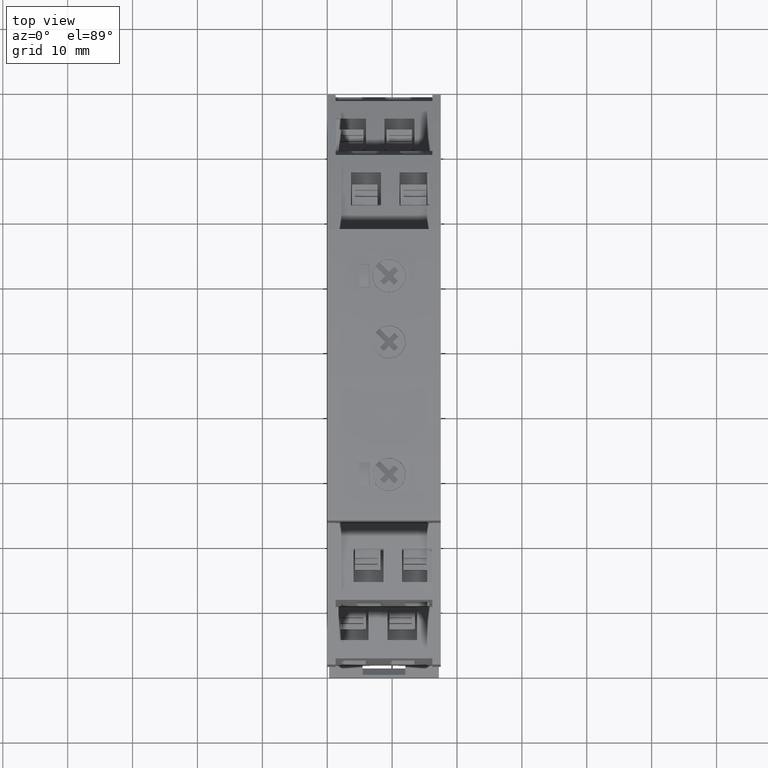
[diagram: clean part render]
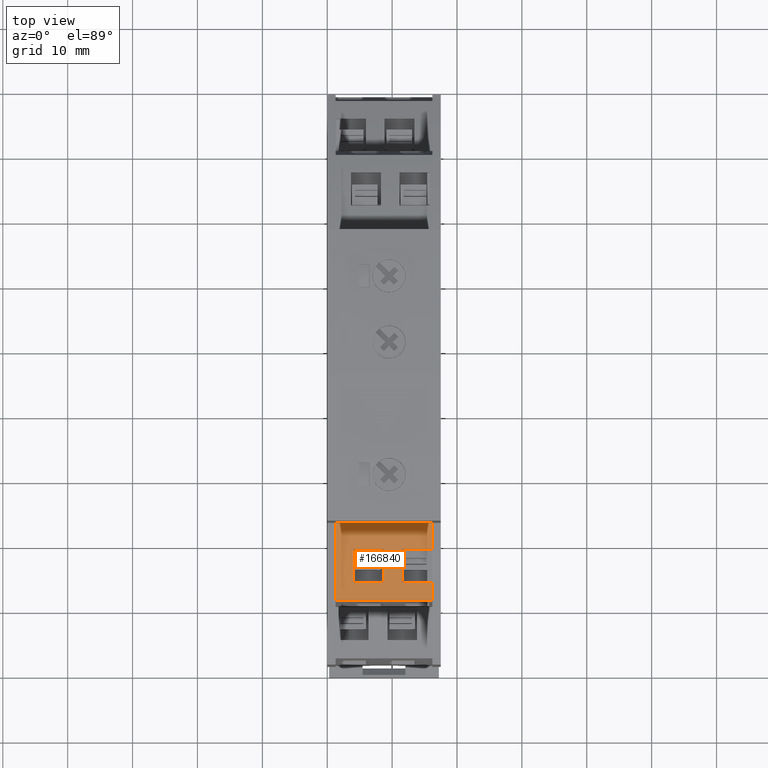
[diagram: same view with one face highlighted and labeled with its STEP entity id]
A machine part, top view. The second image highlights one B-rep face of the part: STEP entity #166840.
In plain terms, the highlighted cylindrical surface (partial cylindrical patch) has radius 138.2 mm, axis along (1, 0, -0).
Its self-contained STEP definition (entity closure, byte-faithful):
#41220=CARTESIAN_POINT('',(-39.937310847489,42.2383940250622,
1.29999999999999));
#41230=VERTEX_POINT('',#41220);
#41260=CARTESIAN_POINT('',(-17.672081182954,-94.1562523067698,
1.29999999999989));
#41270=DIRECTION('',(1.18758417905695E-18,-6.93025158539903E-16,1.));
#41280=DIRECTION('',(0.999998476913288,-0.00174532836590098,
-2.39713883774599E-18));
#41290=AXIS2_PLACEMENT_3D('',#41260,#41270,#41280);
#41300=CIRCLE('',#41290,138.2);
#41310=CARTESIAN_POINT('',(-51.7349236362942,39.7801608302071,
1.29999999999998));
#41320=VERTEX_POINT('',#41310);
#41330=EDGE_CURVE('',#41230,#41320,#41300,.T.);
#50360=CARTESIAN_POINT('',(-51.7349236362942,39.7801608302071,
16.2000000000001));
#50370=VERTEX_POINT('',#50360);
#50400=CARTESIAN_POINT('',(-17.672081182954,-94.1562523067698,16.2));
#50410=DIRECTION('',(1.18758417905695E-18,-6.93025158539903E-16,1.));
#50420=DIRECTION('',(0.999998476913288,-0.00174532836590098,
-2.39713883774599E-18));
#50430=AXIS2_PLACEMENT_3D('',#50400,#50410,#50420);
#50440=CIRCLE('',#50430,138.2);
#50450=CARTESIAN_POINT('',(-39.937310847489,42.2383940250622,
16.2000000000001));
#50460=VERTEX_POINT('',#50450);
#50470=EDGE_CURVE('',#50460,#50370,#50440,.T.);
#51800=CARTESIAN_POINT('',(-39.937310847489,42.2383940250622,
1.29999999999999));
#51810=DIRECTION('',(1.18758417905695E-18,-6.93025158539903E-16,1.));
#51820=VECTOR('',#51810,1.);
#51830=LINE('',#51800,#51820);
#51840=EDGE_CURVE('',#41230,#50460,#51830,.T.);
#165960=CARTESIAN_POINT('',(-17.672081182954,-94.1562523067698,
1.29999999999989));
#165970=DIRECTION('',(1.18758417905695E-18,-6.93025158539903E-16,1.));
#165980=DIRECTION('',(0.999998476913288,-0.00174532836590098,
-2.39713883774599E-18));
#165990=AXIS2_PLACEMENT_3D('',#165960,#165970,#165980);
#166000=CYLINDRICAL_SURFACE('',#165990,138.2);
#166010=CARTESIAN_POINT('',(-49.0099140220283,40.443822852757,
1.29999999999999));
#166020=DIRECTION('',(1.18758417905695E-18,-6.93025158539903E-16,1.));
#166030=VECTOR('',#166020,1.);
#166040=LINE('',#166010,#166030);
#166050=CARTESIAN_POINT('',(-49.0099140220283,40.443822852757,
4.05000000003877));
#166060=VERTEX_POINT('',#166050);
#166070=CARTESIAN_POINT('',(-49.0099140220283,40.443822852757,
8.65000000003893));
#166080=VERTEX_POINT('',#166070);
#166090=EDGE_CURVE('',#166060,#166080,#166040,.T.);
#166100=ORIENTED_EDGE('',*,*,#166090,.F.);
#166110=CARTESIAN_POINT('',(-17.672081182954,-94.1562523067698,
8.65000000003883));
#166120=DIRECTION('',(1.18758417905695E-18,-6.93025158539903E-16,1.));
#166130=DIRECTION('',(0.999998476913288,-0.00174532836590098,
-2.39713883774599E-18));
#166140=AXIS2_PLACEMENT_3D('',#166110,#166120,#166130);
#166150=CIRCLE('',#166140,138.2);
#166160=CARTESIAN_POINT('',(-43.9080095058589,41.5305785392464,
8.65000000003893));
#166170=VERTEX_POINT('',#166160);
#166180=EDGE_CURVE('',#166170,#166080,#166150,.T.);
#166190=ORIENTED_EDGE('',*,*,#166180,.T.);
#166200=CARTESIAN_POINT('',(-43.9080095058589,41.5305785392464,
1.29999999999999));
#166210=DIRECTION('',(1.18758417905695E-18,-6.93025158539903E-16,1.));
#166220=VECTOR('',#166210,1.);
#166230=LINE('',#166200,#166220);
#166240=CARTESIAN_POINT('',(-43.9080095058589,41.5305785392464,
4.05000000003897));
#166250=VERTEX_POINT('',#166240);
#166260=EDGE_CURVE('',#166250,#166170,#166230,.T.);
#166270=ORIENTED_EDGE('',*,*,#166260,.T.);
#166280=CARTESIAN_POINT('',(-17.672081182954,-94.1562523067698,
4.05000000003887));
#166290=DIRECTION('',(1.18758417905695E-18,-6.93025158539903E-16,1.));
#166300=DIRECTION('',(0.999998476913288,-0.00174532836590098,
-2.39713883774599E-18));
#166310=AXIS2_PLACEMENT_3D('',#166280,#166290,#166300);
#166320=CIRCLE('',#166310,138.2);
#166330=EDGE_CURVE('',#166250,#166060,#166320,.T.);
#166340=ORIENTED_EDGE('',*,*,#166330,.F.);
#166350=EDGE_LOOP('',(#166340,#166270,#166190,#166100));
#166360=FACE_BOUND('',#166350,.T.);
#166370=CARTESIAN_POINT('',(-49.0099140220283,40.443822852757,
1.29999999999999));
#166380=DIRECTION('',(1.18758417905695E-18,-6.93025158539903E-16,1.));
#166390=VECTOR('',#166380,1.);
#166400=LINE('',#166370,#166390);
#166410=CARTESIAN_POINT('',(-49.0099140220283,40.443822852757,
11.5500000000388));
#166420=VERTEX_POINT('',#166410);
#166430=CARTESIAN_POINT('',(-49.0099140220283,40.443822852757,
16.1500000000388));
#166440=VERTEX_POINT('',#166430);
#166450=EDGE_CURVE('',#166420,#166440,#166400,.T.);
#166460=ORIENTED_EDGE('',*,*,#166450,.F.);
#166470=CARTESIAN_POINT('',(-17.672081182954,-94.1562523067698,
16.1500000000389));
#166480=DIRECTION('',(1.18758417905695E-18,-6.93025158539903E-16,1.));
#166490=DIRECTION('',(0.999998476913288,-0.00174532836590098,
-2.39713883774599E-18));
#166500=AXIS2_PLACEMENT_3D('',#166470,#166480,#166490);
#166510=CIRCLE('',#166500,138.2);
#166520=CARTESIAN_POINT('',(-43.9080095058589,41.5305785392464,
16.150000000039));
#166530=VERTEX_POINT('',#166520);
#166540=EDGE_CURVE('',#166530,#166440,#166510,.T.);
#166550=ORIENTED_EDGE('',*,*,#166540,.T.);
#166560=CARTESIAN_POINT('',(-43.9080095058589,41.5305785392464,
1.29999999999999));
#166570=DIRECTION('',(1.18758417905695E-18,-6.93025158539903E-16,1.));
#166580=VECTOR('',#166570,1.);
#166590=LINE('',#166560,#166580);
#166600=CARTESIAN_POINT('',(-43.9080095058589,41.5305785392464,
11.5500000000389));
#166610=VERTEX_POINT('',#166600);
#166620=EDGE_CURVE('',#166610,#166530,#166590,.T.);
#166630=ORIENTED_EDGE('',*,*,#166620,.T.);
#166640=CARTESIAN_POINT('',(-17.672081182954,-94.1562523067698,
11.5500000000388));
#166650=DIRECTION('',(1.18758417905695E-18,-6.93025158539903E-16,1.));
#166660=DIRECTION('',(0.999998476913288,-0.00174532836590098,
-2.39713883774599E-18));
#166670=AXIS2_PLACEMENT_3D('',#166640,#166650,#166660);
#166680=CIRCLE('',#166670,138.2);
#166690=EDGE_CURVE('',#166610,#166420,#166680,.T.);
#166700=ORIENTED_EDGE('',*,*,#166690,.F.);
#166710=EDGE_LOOP('',(#166700,#166630,#166550,#166460));
#166720=FACE_BOUND('',#166710,.T.);
#166730=ORIENTED_EDGE('',*,*,#51840,.F.);
#166740=ORIENTED_EDGE('',*,*,#50470,.F.);
#166750=CARTESIAN_POINT('',(-51.7349236362942,39.7801608302071,
1.29999999999999));
#166760=DIRECTION('',(1.18758417905695E-18,-6.93025158539903E-16,1.));
#166770=VECTOR('',#166760,1.);
#166780=LINE('',#166750,#166770);
#166790=EDGE_CURVE('',#41320,#50370,#166780,.T.);
#166800=ORIENTED_EDGE('',*,*,#166790,.T.);
#166810=ORIENTED_EDGE('',*,*,#41330,.T.);
#166820=EDGE_LOOP('',(#166810,#166800,#166740,#166730));
#166830=FACE_OUTER_BOUND('',#166820,.T.);
#166840=ADVANCED_FACE('',(#166360,#166720,#166830),#166000,.T.);